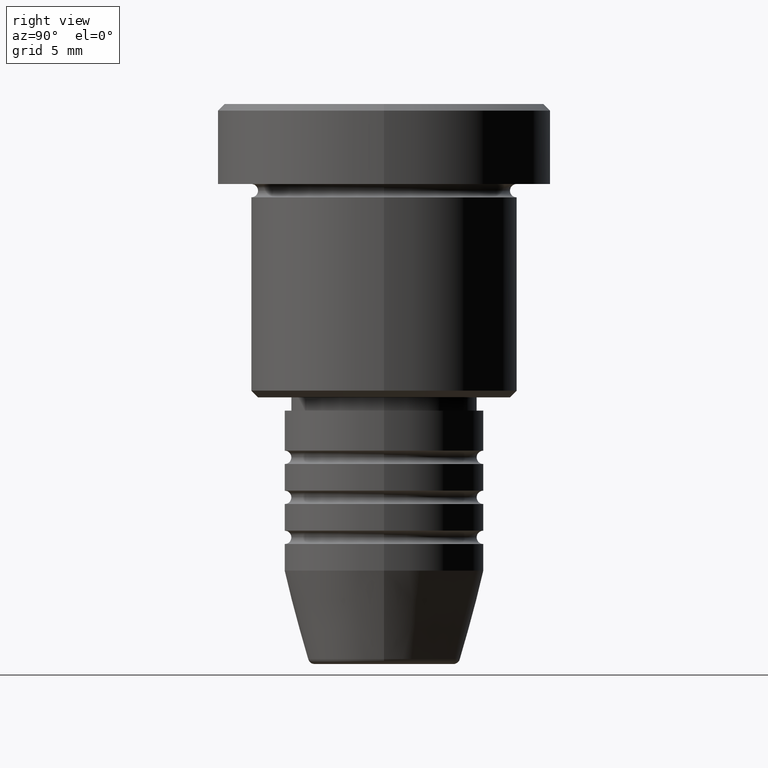
[diagram: clean part render]
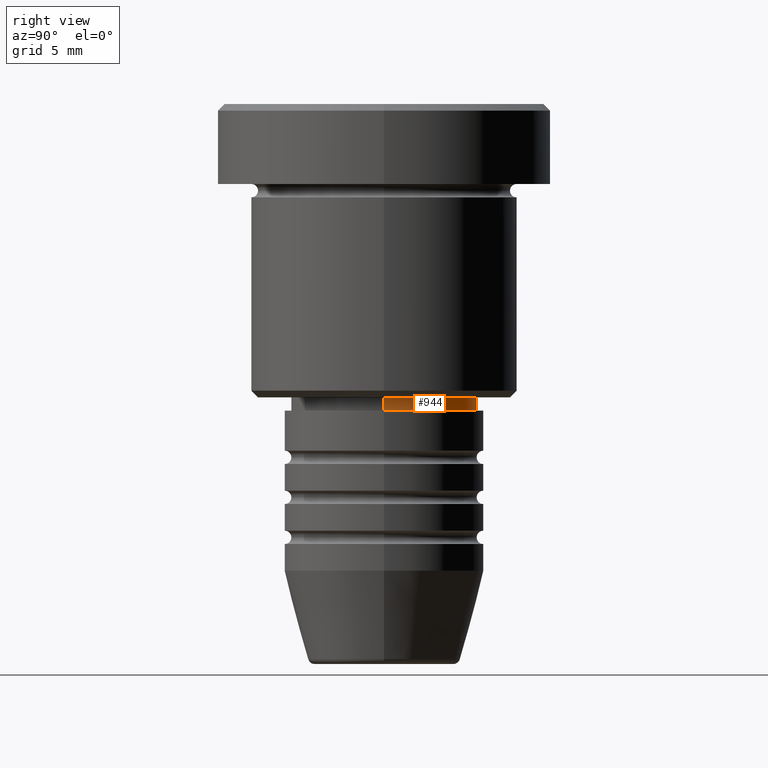
[diagram: same view with one face highlighted and labeled with its STEP entity id]
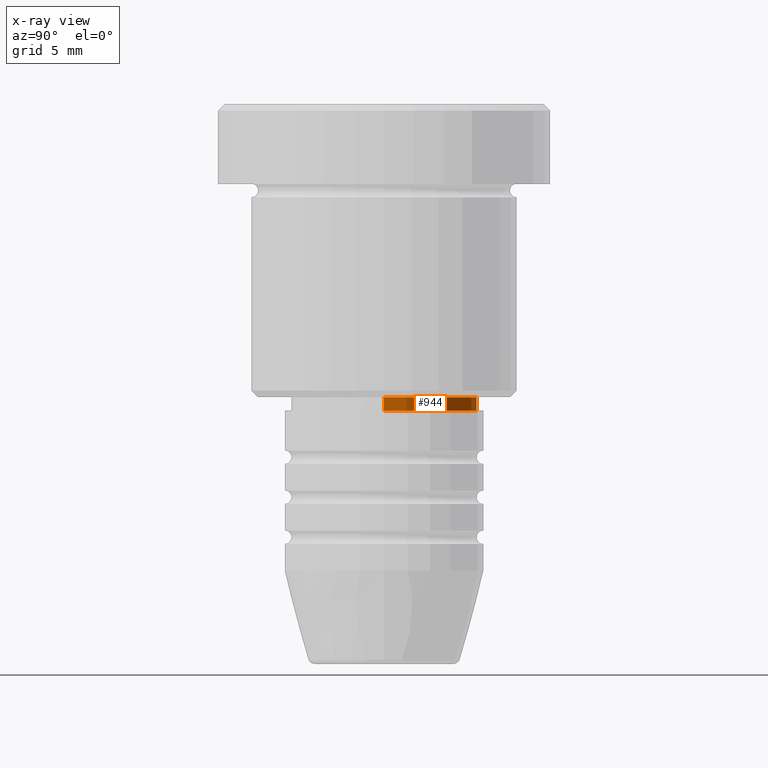
[diagram: x-ray of the same camera — body ghosted, the highlighted face saturated]
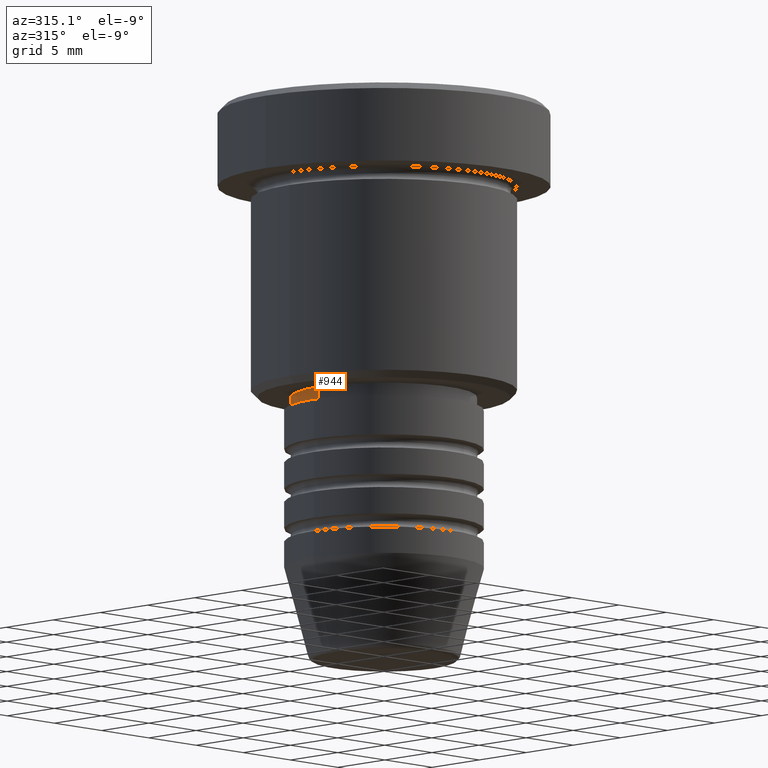
[diagram: same view with one face highlighted and labeled with its STEP entity id]
A machine part, right view. The second image highlights one B-rep face of the part: STEP entity #944.
The next image is the same camera in x-ray: the body ghosted, the highlighted face saturated — about 0% of this face is hidden behind the body in this view.
A second angle (auxiliary view) of the same face is appended — the face is thin or edge-on in the first view.
In plain terms, the highlighted cylindrical surface (partial cylindrical patch) has radius 7 mm, axis along (-0, -0, 1).
Its self-contained STEP definition (entity closure, byte-faithful):
#3 = AXIS2_PLACEMENT_3D ( 'NONE', #537, #987, #888 ) ;
#39 = ORIENTED_EDGE ( 'NONE', *, *, #201, .T. ) ;
#67 = DIRECTION ( 'NONE',  ( 1.000000000000000000, 0.000000000000000000, 0.000000000000000000 ) ) ;
#93 = AXIS2_PLACEMENT_3D ( 'NONE', #635, #728, #67 ) ;
#127 = EDGE_CURVE ( 'NONE', #954, #430, #859, .T. ) ;
#132 = CARTESIAN_POINT ( 'NONE',  ( 6.999999999999999112, 0.000000000000000000, 0.000000000000000000 ) ) ;
#156 = CARTESIAN_POINT ( 'NONE',  ( 6.999999999999999112, 0.000000000000000000, -21.99999999999999645 ) ) ;
#170 = FACE_OUTER_BOUND ( 'NONE', #1148, .T. ) ;
#201 = EDGE_CURVE ( 'NONE', #954, #402, #408, .T. ) ;
#250 = CARTESIAN_POINT ( 'NONE',  ( -6.999999999999999112, 8.572527594031472204E-16, -21.99999999999999645 ) ) ;
#256 = CIRCLE ( 'NONE', #932, 6.999999999999999112 ) ;
#402 = VERTEX_POINT ( 'NONE', #1138 ) ;
#408 = CIRCLE ( 'NONE', #3, 6.999999999999999112 ) ;
#430 = VERTEX_POINT ( 'NONE', #156 ) ;
#474 = VECTOR ( 'NONE', #1121, 1000.000000000000000 ) ;
#499 = DIRECTION ( 'NONE',  ( -0.000000000000000000, -0.000000000000000000, 1.000000000000000000 ) ) ;
#528 = VERTEX_POINT ( 'NONE', #250 ) ;
#529 = CARTESIAN_POINT ( 'NONE',  ( 0.000000000000000000, 0.000000000000000000, -21.99999999999999645 ) ) ;
#536 = ORIENTED_EDGE ( 'NONE', *, *, #1008, .F. ) ;
#537 = CARTESIAN_POINT ( 'NONE',  ( 0.000000000000000000, 0.000000000000000000, -23.00000000000000711 ) ) ;
#539 = DIRECTION ( 'NONE',  ( -0.000000000000000000, -0.000000000000000000, 1.000000000000000000 ) ) ;
#635 = CARTESIAN_POINT ( 'NONE',  ( 0.000000000000000000, 0.000000000000000000, 0.000000000000000000 ) ) ;
#651 = VECTOR ( 'NONE', #499, 1000.000000000000000 ) ;
#691 = CARTESIAN_POINT ( 'NONE',  ( -6.999999999999999112, 8.572527594031472204E-16, 0.000000000000000000 ) ) ;
#694 = ORIENTED_EDGE ( 'NONE', *, *, #127, .F. ) ;
#701 = ORIENTED_EDGE ( 'NONE', *, *, #967, .T. ) ;
#712 = DIRECTION ( 'NONE',  ( 1.000000000000000000, 0.000000000000000000, 0.000000000000000000 ) ) ;
#728 = DIRECTION ( 'NONE',  ( -0.000000000000000000, -0.000000000000000000, 1.000000000000000000 ) ) ;
#859 = LINE ( 'NONE', #132, #651 ) ;
#888 = DIRECTION ( 'NONE',  ( 1.000000000000000000, 0.000000000000000000, 0.000000000000000000 ) ) ;
#896 = CYLINDRICAL_SURFACE ( 'NONE', #93, 6.999999999999999112 ) ;
#932 = AXIS2_PLACEMENT_3D ( 'NONE', #529, #539, #712 ) ;
#944 = ADVANCED_FACE ( 'NONE', ( #170 ), #896, .T. ) ;
#954 = VERTEX_POINT ( 'NONE', #1082 ) ;
#967 = EDGE_CURVE ( 'NONE', #402, #528, #1149, .T. ) ;
#987 = DIRECTION ( 'NONE',  ( -0.000000000000000000, -0.000000000000000000, 1.000000000000000000 ) ) ;
#1008 = EDGE_CURVE ( 'NONE', #430, #528, #256, .T. ) ;
#1082 = CARTESIAN_POINT ( 'NONE',  ( 6.999999999999999112, 0.000000000000000000, -23.00000000000000711 ) ) ;
#1121 = DIRECTION ( 'NONE',  ( -0.000000000000000000, -0.000000000000000000, 1.000000000000000000 ) ) ;
#1138 = CARTESIAN_POINT ( 'NONE',  ( -6.999999999999999112, 8.572527594031472204E-16, -23.00000000000000711 ) ) ;
#1148 = EDGE_LOOP ( 'NONE', ( #39, #701, #536, #694 ) ) ;
#1149 = LINE ( 'NONE', #691, #474 ) ;